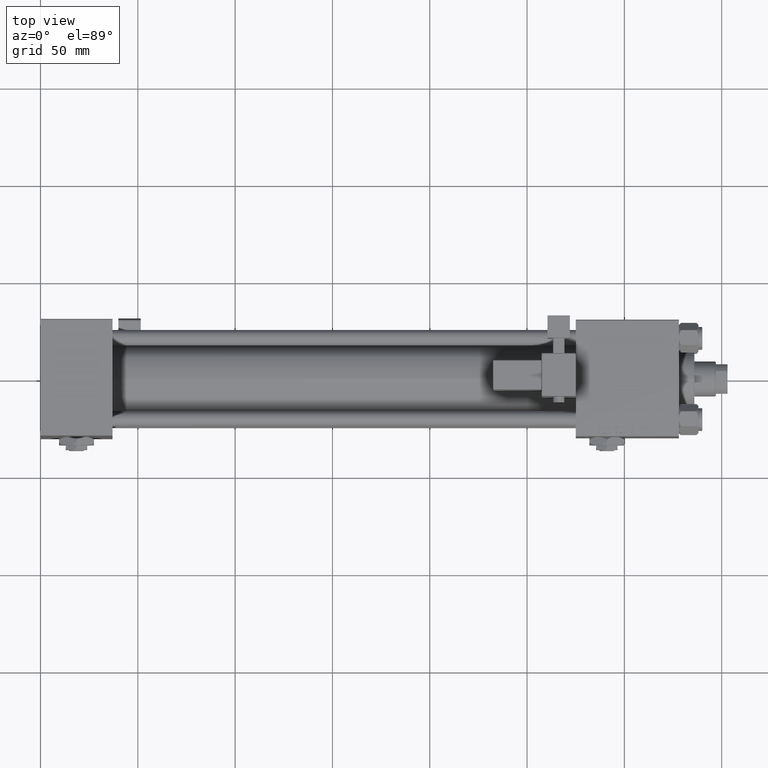
[diagram: clean part render]
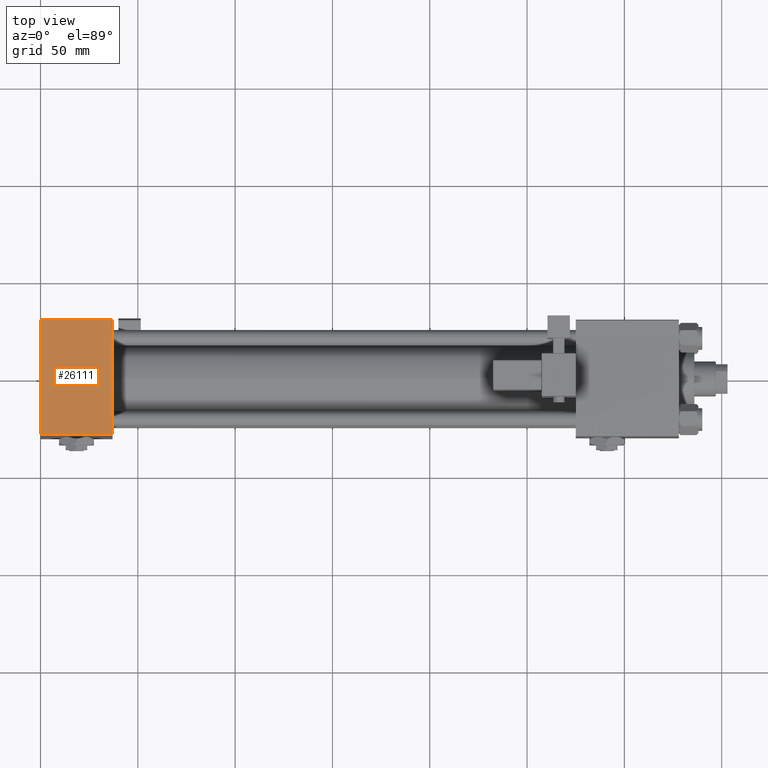
[diagram: same view with one face highlighted and labeled with its STEP entity id]
A machine part, top view. The second image highlights one B-rep face of the part: STEP entity #26111.
In plain terms, the highlighted planar face has unit normal (0, 0, -1).
Its self-contained STEP definition (entity closure, byte-faithful):
#1395 = EDGE_LOOP ( 'NONE', ( #42906, #11584, #1585, #52247 ) ) ;
#1585 = ORIENTED_EDGE ( 'NONE', *, *, #16777, .F. ) ;
#3833 = VERTEX_POINT ( 'NONE', #18208 ) ;
#7085 = CARTESIAN_POINT ( 'NONE',  ( 0.000000000000000000, 29.50000000000000355, 54.50000000000001421 ) ) ;
#7669 = EDGE_CURVE ( 'NONE', #51954, #36176, #15043, .T. ) ;
#8455 = FACE_OUTER_BOUND ( 'NONE', #1395, .T. ) ;
#11584 = ORIENTED_EDGE ( 'NONE', *, *, #7669, .T. ) ;
#12565 = DIRECTION ( 'NONE',  ( 0.000000000000000000, 1.000000000000000000, 1.156482317317871478E-16 ) ) ;
#14601 = VERTEX_POINT ( 'NONE', #7085 ) ;
#15043 = LINE ( 'NONE', #41335, #21345 ) ;
#15946 = DIRECTION ( 'NONE',  ( -1.000000000000000000, 0.000000000000000000, 0.000000000000000000 ) ) ;
#16777 = EDGE_CURVE ( 'NONE', #3833, #36176, #22622, .T. ) ;
#18208 = CARTESIAN_POINT ( 'NONE',  ( 37.00000000000000000, 29.50000000000000355, 54.50000000000001421 ) ) ;
#19800 = CARTESIAN_POINT ( 'NONE',  ( 37.00000000000000000, -29.50000000000000711, 54.50000000000000711 ) ) ;
#21345 = VECTOR ( 'NONE', #40526, 1000.000000000000000 ) ;
#22622 = LINE ( 'NONE', #35197, #47975 ) ;
#24456 = EDGE_CURVE ( 'NONE', #3833, #14601, #37311, .T. ) ;
#24713 = LINE ( 'NONE', #25792, #35620 ) ;
#25425 = PLANE ( 'NONE',  #50334 ) ;
#25792 = CARTESIAN_POINT ( 'NONE',  ( 0.000000000000000000, 30.00000000000000355, 54.50000000000001421 ) ) ;
#26111 = ADVANCED_FACE ( 'NONE', ( #8455 ), #25425, .F. ) ;
#34394 = DIRECTION ( 'NONE',  ( 0.000000000000000000, -1.000000000000000000, -1.156482317317871478E-16 ) ) ;
#35197 = CARTESIAN_POINT ( 'NONE',  ( 37.00000000000000000, 30.00000000000000355, 54.50000000000001421 ) ) ;
#35620 = VECTOR ( 'NONE', #45572, 1000.000000000000000 ) ;
#36176 = VERTEX_POINT ( 'NONE', #19800 ) ;
#37311 = LINE ( 'NONE', #45283, #52199 ) ;
#40526 = DIRECTION ( 'NONE',  ( 1.000000000000000000, 0.000000000000000000, 0.000000000000000000 ) ) ;
#41335 = CARTESIAN_POINT ( 'NONE',  ( 37.00000000000000000, -29.50000000000000711, 54.50000000000000711 ) ) ;
#41622 = CARTESIAN_POINT ( 'NONE',  ( 37.00000000000000000, 30.00000000000000355, 54.50000000000001421 ) ) ;
#42906 = ORIENTED_EDGE ( 'NONE', *, *, #53799, .T. ) ;
#45183 = CARTESIAN_POINT ( 'NONE',  ( 0.000000000000000000, -29.50000000000000711, 54.50000000000000711 ) ) ;
#45283 = CARTESIAN_POINT ( 'NONE',  ( 0.000000000000000000, 29.50000000000000355, 54.50000000000001421 ) ) ;
#45572 = DIRECTION ( 'NONE',  ( 0.000000000000000000, -1.000000000000000000, -1.156482317317871478E-16 ) ) ;
#47975 = VECTOR ( 'NONE', #34394, 1000.000000000000000 ) ;
#50132 = DIRECTION ( 'NONE',  ( 0.000000000000000000, 1.156482317317871478E-16, -1.000000000000000000 ) ) ;
#50334 = AXIS2_PLACEMENT_3D ( 'NONE', #41622, #50132, #12565 ) ;
#51954 = VERTEX_POINT ( 'NONE', #45183 ) ;
#52199 = VECTOR ( 'NONE', #15946, 1000.000000000000000 ) ;
#52247 = ORIENTED_EDGE ( 'NONE', *, *, #24456, .T. ) ;
#53799 = EDGE_CURVE ( 'NONE', #14601, #51954, #24713, .T. ) ;